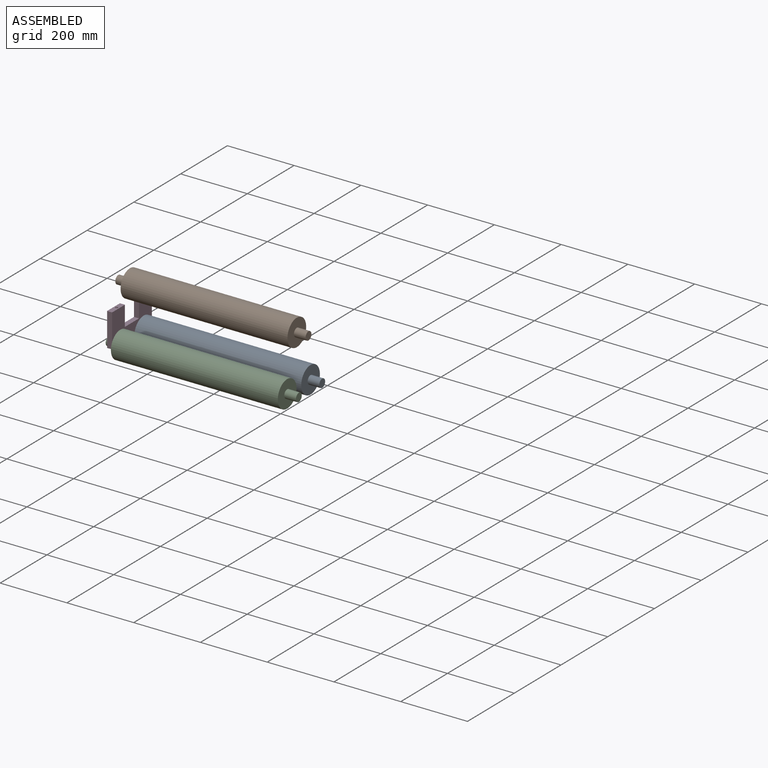
[diagram: assembled view]
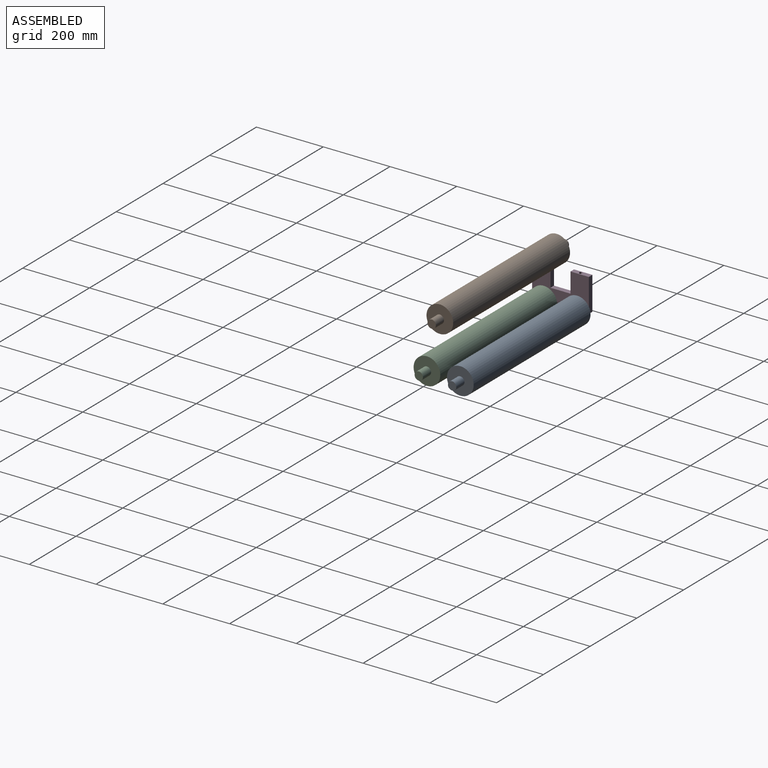
[diagram: assembled view, second angle]
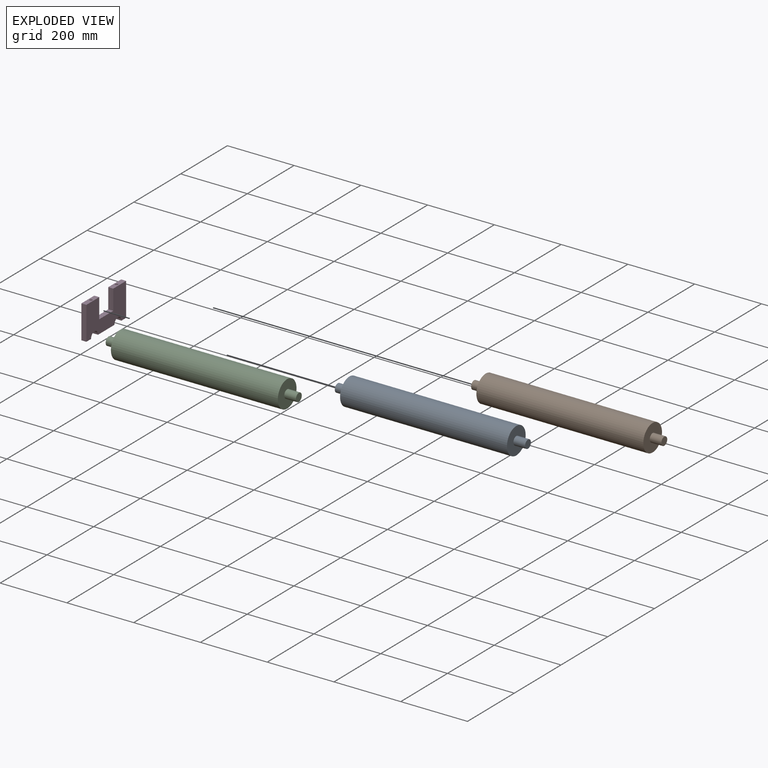
[diagram: exploded view]
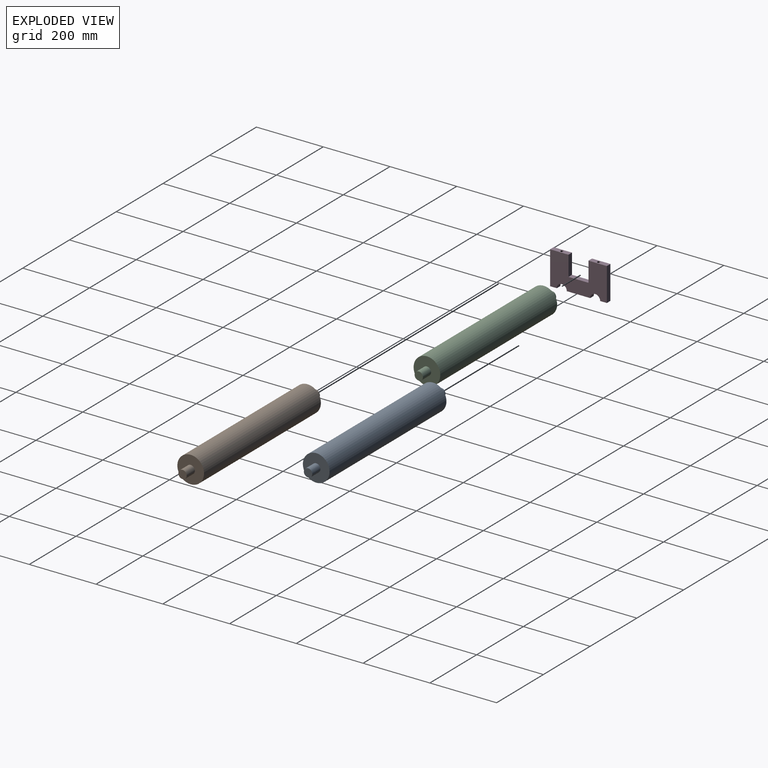
[diagram: exploded view, second angle]
ASSEMBLY  parts=4 mates=2
PART A: 7 faces, bbox 570x80x80 mm
  f0: cylinder r=40mm len=500mm, axis (-1,0,0), area 125663.7mm2, adj f1,f2
  f1: plane 80x80mm, normal (1,0,0), area 4535.7mm2, adj f0,f3
  f2: plane 80x80mm, normal (-1,0,0), area 4535.7mm2, adj f0,f5
  f3: cylinder r=12.5mm len=35mm, axis (-1,0,0), area 2748.9mm2, adj f1,f4
  f4: plane 25x25mm, normal (1,0,0), area 490.9mm2, adj f3
  f5: cylinder r=12.5mm len=35mm, axis (1,0,0), area 2748.9mm2, adj f2,f6
  f6: plane 25x25mm, normal (-1,0,0), area 490.9mm2, adj f5
PART B: same geometry as A
PART C: same geometry as A
PART D: 18 faces, bbox 15x170x100 mm
  f0: plane 70x15mm, normal (0,0,-1), area 1050mm2, adj f1,f11,f12,f13
  f1: cylinder r=15mm len=30mm, axis (1,0,0), area 706.9mm2, adj f0,f2,f12,f13
  f2: plane 20x15mm, normal (0,0,-1), area 300mm2, adj f1,f3,f12,f13
  f3: plane 100x15mm, normal (0,1,0), area 1500mm2, adj f2,f4,f12,f13
  f4: plane 55x15mm, normal (0,0,1), area 774.7mm2, adj f3,f5,f12,f13,f16
  f5: plane 60x15mm, normal (0,-1,0), area 900mm2, adj f4,f6,f12,f13
  f6: plane 60x15mm, normal (0,0,1), area 900mm2, adj f5,f7,f12,f13
  f7: plane 60x15mm, normal (0,1,0), area 900mm2, adj f6,f8,f12,f13
  f8: plane 55x15mm, normal (0,0,1), area 774.7mm2, adj f7,f9,f12,f13,f14
  f9: plane 100x15mm, normal (0,-1,0), area 1500mm2, adj f8,f10,f12,f13
  f10: plane 20x15mm, normal (0,0,-1), area 300mm2, adj f9,f11,f12,f13
  f11: cylinder r=15mm len=30mm, axis (1,0,0), area 706.9mm2, adj f0,f10,f12,f13
  f12: plane 170x100mm, normal (-1,0,0), area 12693.1mm2, adj f0,f1,f2,f3,f4,f5,f6,f7
  f13: plane 170x100mm, normal (1,0,0), area 12693.1mm2, adj f0,f1,f2,f3,f4,f5,f6,f7
  f14: cylinder r=4mm len=60mm, axis (0,0,1), area 1508mm2, adj f8,f15
  f15: plane 8x8mm, normal (0,0,1), area 50.3mm2, adj f14
  f16: cylinder r=4mm len=60mm, axis (0,0,1), area 1508mm2, adj f4,f17
  f17: plane 8x8mm, normal (0,0,1), area 50.3mm2, adj f16
PLACE A t=(107.95,166.62,-37.07)mm
PLACE B t=(109.18,106.17,114.55)mm
PLACE C t=(107.95,66.62,-37.07)mm
PLACE D t=(107.95,66.62,-37.07)mm
MATE revolute C.f0 <-> D.f11  axis (-1,0,0) through (107.95,16.62,-37.07)mm
MATE revolute A.f0 <-> D.f1  axis (-1,0,0) through (107.95,116.62,-37.07)mm
